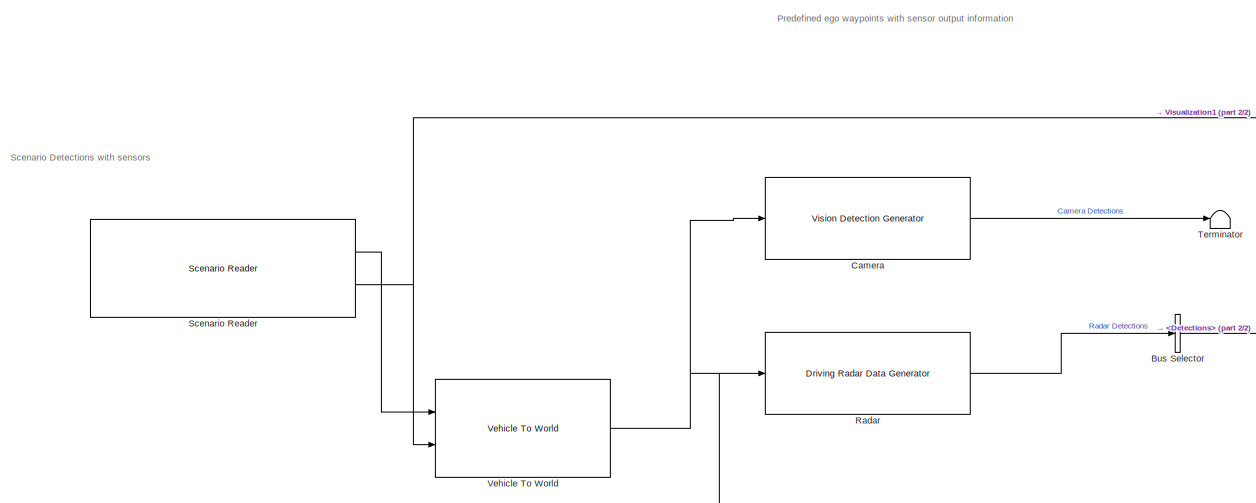
[diagram: root canvas - part 1/2, left side, full height]
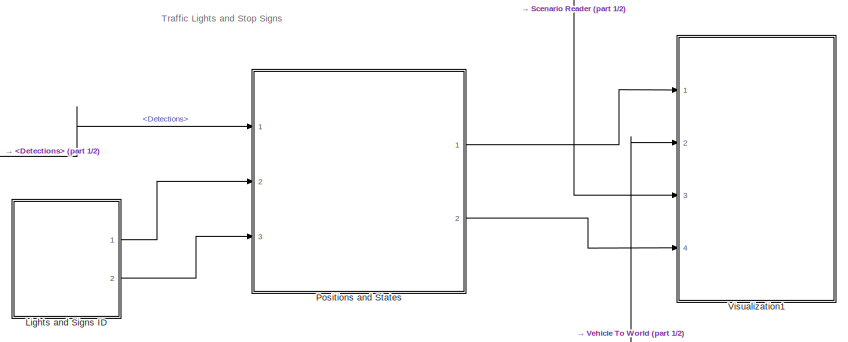
[diagram: root canvas - part 2/2, middle right region]
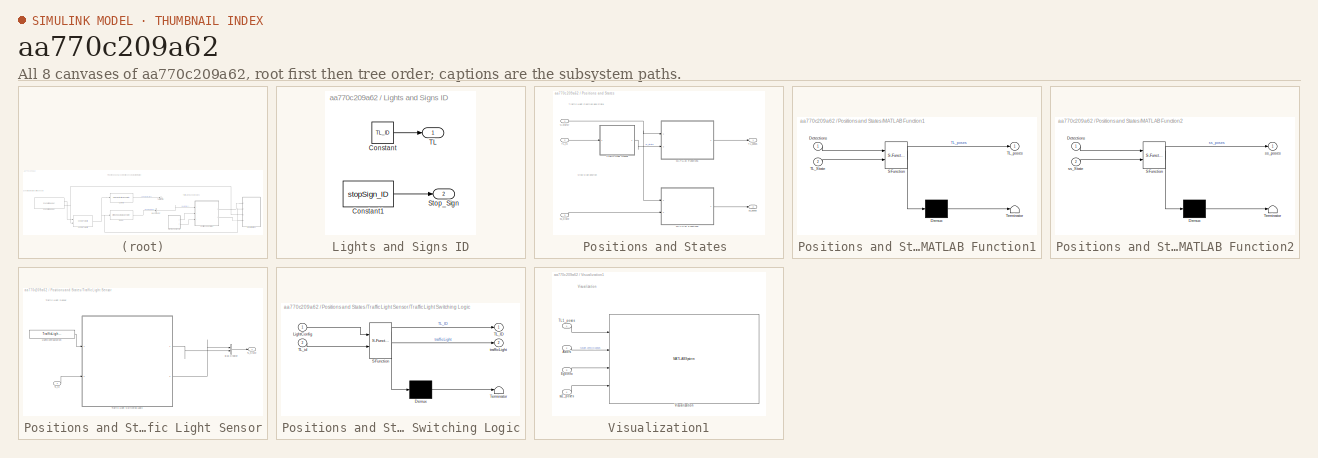
[diagram: thumbnail index - all 8 canvases of the model, root first then tree order]
MODEL slx_aa770c209a62
KIND model
CONFIG AbsTol = auto
CONFIG EnableMultiTasking = off
CONFIG FixedStep = auto
CONFIG MaxStep = auto
CONFIG MinStep = auto
CONFIG RelTol = 1e-3
CONFIG SampleTimeConstraint = Unconstrained
CONFIG SolverName = FixedStepAuto
CONFIG StartTime = 0.0
CONFIG StopTime = stopTime
WORKSPACE source: mxarray member
WORKSPACE firstWarning = 1
WORKSPACE originalScenarioChecksum = '114339432DE22364D47BB28FC96DC10C'
BLOCK [BusSelector] Bus Selector
  OutputSignals = Detections
  Ports = [1, 1]
BLOCK [Reference] Camera  REF=drivingscenarioandsensors/Vision Detection Generator
  Ports = [1, 1]
  SourceBlock = drivingscenarioandsensors/Vision Detection Generator
  SourceProductBaseCode = DR
  SourceType = visionDetectionGenerator
BLOCK [SubSystem] Lights and Signs ID
  Ports = [0, 2]
  RequestExecContextInheritance = off
BLOCK [Constant] Lights and Signs ID/Constant
  Value = TL_ID
BLOCK [Constant] Lights and Signs ID/Constant1
  Value = stopSign_ID
BLOCK [Outport] Lights and Signs ID/Stop_Sign
  Port = 2
BLOCK [Outport] Lights and Signs ID/TL
BLOCK [SubSystem] Positions and States 
  Ports = [3, 2]
  RequestExecContextInheritance = off
BLOCK [Inport] Positions and States /<Actors>
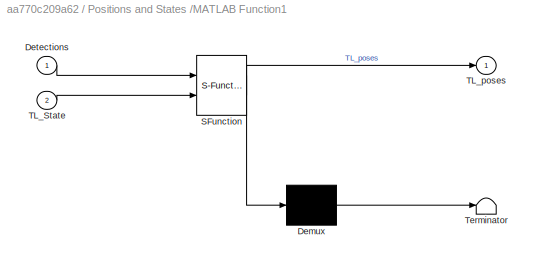
BLOCK [SubSystem] Positions and States /MATLAB Function1
  ErrorFcn = Stateflow.Translate.translate
  PermitHierarchicalResolution = ExplicitOnly
  Ports = [2, 1]
  RequestExecContextInheritance = off
  SFBlockType = MATLAB Function
  TreatAsAtomicUnit = on
BLOCK [Demux] Positions and States /MATLAB Function1/ Demux 
  Outputs = 1
  Ports = [1, 1]
BLOCK [S-Function] Positions and States /MATLAB Function1/ SFunction 
  EnableBusSupport = on
  FunctionName = sf_sfun
  PortCounts = [2 2]
  Ports = [2, 2]
  SFcnIsStateOwnerBlock = off
  SFunctionDeploymentMode = off
  Tag = Stateflow S-Function 1
BLOCK [Terminator] Positions and States /MATLAB Function1/ Terminator 
BLOCK [Inport] Positions and States /MATLAB Function1/Detections
BLOCK [Inport] Positions and States /MATLAB Function1/TL_State
  Port = 2
BLOCK [Outport] Positions and States /MATLAB Function1/TL_poses
BLOCK [SubSystem] Positions and States /MATLAB Function2
  ErrorFcn = Stateflow.Translate.translate
  PermitHierarchicalResolution = ExplicitOnly
  Ports = [2, 1]
  RequestExecContextInheritance = off
  SFBlockType = MATLAB Function
  TreatAsAtomicUnit = on
BLOCK [Demux] Positions and States /MATLAB Function2/ Demux 
  Outputs = 1
  Ports = [1, 1]
BLOCK [S-Function] Positions and States /MATLAB Function2/ SFunction 
  EnableBusSupport = on
  FunctionName = sf_sfun
  PortCounts = [2 2]
  Ports = [2, 2]
  SFcnIsStateOwnerBlock = off
  SFunctionDeploymentMode = off
  Tag = Stateflow S-Function 4
BLOCK [Terminator] Positions and States /MATLAB Function2/ Terminator 
BLOCK [Inport] Positions and States /MATLAB Function2/Detections
BLOCK [Inport] Positions and States /MATLAB Function2/ss_State
  Port = 2
BLOCK [Outport] Positions and States /MATLAB Function2/ss_poses
BLOCK [Inport] Positions and States /TL_id
  Port = 2
BLOCK [Outport] Positions and States /TL_poses
BLOCK [SubSystem] Positions and States /Traffic Light Sensor
  Ports = [1, 1]
  RequestExecContextInheritance = off
BLOCK [BusCreator] Positions and States /Traffic Light Sensor/Bus Creator
  DisplayOption = bar
  InheritFromInputs = on
  Inputs = 2
  Ports = [2, 1]
BLOCK [Constant] Positions and States /Traffic Light Sensor/LightConfiguration
  Value = TrafficLightSensorModeSelection
BLOCK [Outport] Positions and States /Traffic Light Sensor/TL_State
BLOCK [Inport] Positions and States /Traffic Light Sensor/TL_id
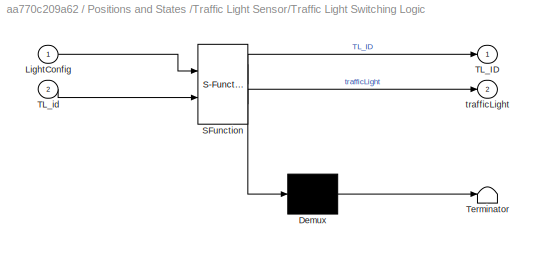
BLOCK [SubSystem] Positions and States /Traffic Light Sensor/Traffic Light Switching Logic
  ErrorFcn = Stateflow.Translate.translate
  PermitHierarchicalResolution = ExplicitOnly
  Ports = [2, 2]
  RequestExecContextInheritance = off
  SFBlockType = Chart
  TreatAsAtomicUnit = on
BLOCK [Demux] Positions and States /Traffic Light Sensor/Traffic Light Switching Logic/ Demux 
  Outputs = 1
  Ports = [1, 1]
BLOCK [S-Function] Positions and States /Traffic Light Sensor/Traffic Light Switching Logic/ SFunction 
  EnableBusSupport = on
  FunctionName = sf_sfun
  PortCounts = [2 3]
  Ports = [2, 3]
  SFcnIsStateOwnerBlock = off
  SFunctionDeploymentMode = off
  Tag = Stateflow S-Function 5
BLOCK [Terminator] Positions and States /Traffic Light Sensor/Traffic Light Switching Logic/ Terminator 
BLOCK [Inport] Positions and States /Traffic Light Sensor/Traffic Light Switching Logic/LightConfig
BLOCK [Outport] Positions and States /Traffic Light Sensor/Traffic Light Switching Logic/TL_ID
BLOCK [Inport] Positions and States /Traffic Light Sensor/Traffic Light Switching Logic/TL_id
  Port = 2
BLOCK [Outport] Positions and States /Traffic Light Sensor/Traffic Light Switching Logic/trafficLight
  Port = 2
BLOCK [Inport] Positions and States /ss_State
  Port = 3
BLOCK [Outport] Positions and States /ss_poses
  Port = 2
BLOCK [Reference] Radar  REF=drivingscenarioandsensors/Driving Radar Data Generator
  Ports = [1, 1]
  SourceBlock = drivingscenarioandsensors/Driving Radar Data Generator
  SourceProductBaseCode = DR
  SourceType = drivingRadarDataGenerator
BLOCK [Reference] Scenario Reader  REF=drivingscenarioandsensors/Scenario Reader
  Ports = [0, 2]
  SourceBlock = drivingscenarioandsensors/Scenario Reader
  SourceProductBaseCode = DR
  SourceType = driving.scenario.internal.ScenarioReader
BLOCK [Terminator] Terminator
BLOCK [Reference] Vehicle To World  REF=drivingscenarioandsensors/Vehicle To World
  Ports = [2, 1]
  SourceBlock = drivingscenarioandsensors/Vehicle To World
  SourceProductBaseCode = DR
  SourceType = driving.scenario.internal.VehicleToWorld
BLOCK [SubSystem] Visualization1
  Ports = [4]
  RequestExecContextInheritance = off
BLOCK [Inport] Visualization1/Actors
  Port = 2
BLOCK [Inport] Visualization1/EgoInfo
  Port = 3
BLOCK [Inport] Visualization1/TL1_poses
BLOCK [MATLABSystem] Visualization1/Visualization
  MaskDisplay = disp('TL_vis');\nport_label('input',1,'TL');\nport_label('input',2,'TargetPoses');\nport_label('input',3,'EgoInfo');\nport_label('input',4,'SS');
  MaskType = TL_vis
  Ports = [4]
  System = TL_vis
BLOCK [Inport] Visualization1/ss1_poses
  Port = 4
ANNOTATION (root): Predefined ego waypoints with sensor output information
ANNOTATION (root): Scenario Detections with sensors
ANNOTATION (root): Traffic Lights and Stop Signs
ANNOTATION Positions and States : Stop Sign positon
ANNOTATION Positions and States : Traffic Light Position and State
ANNOTATION Positions and States /Traffic Light Sensor: Traffic Light Sensor
ANNOTATION Visualization1: Visualization
LINE Bus Selector:1 -> Positions and States :1
LINE Camera:1 -> Terminator:1
LINE Lights and Signs ID/Constant1:1 -> Lights and Signs ID/Stop_Sign:1
LINE Lights and Signs ID/Constant:1 -> Lights and Signs ID/TL:1
LINE Lights and Signs ID:1 -> Positions and States :2
LINE Lights and Signs ID:2 -> Positions and States :3
NET Positions and States /<Actors>:1 -> Positions and States /MATLAB Function1:1, Positions and States /MATLAB Function2:1
LINE Positions and States /MATLAB Function1:1 -> Positions and States /TL_poses:1
LINE Positions and States /MATLAB Function2:1 -> Positions and States /ss_poses:1
LINE Positions and States /TL_id:1 -> Positions and States /Traffic Light Sensor:1
LINE Positions and States /Traffic Light Sensor/Bus Creator:1 -> Positions and States /Traffic Light Sensor/TL_State:1
LINE Positions and States /Traffic Light Sensor/LightConfiguration:1 -> Positions and States /Traffic Light Sensor/Traffic Light Switching Logic:1
LINE Positions and States /Traffic Light Sensor/TL_id:1 -> Positions and States /Traffic Light Sensor/Traffic Light Switching Logic:2
LINE Positions and States /Traffic Light Sensor/Traffic Light Switching Logic:1 -> Positions and States /Traffic Light Sensor/Bus Creator:2
LINE Positions and States /Traffic Light Sensor/Traffic Light Switching Logic:2 -> Positions and States /Traffic Light Sensor/Bus Creator:1
LINE Positions and States /Traffic Light Sensor:1 -> Positions and States /MATLAB Function1:2
LINE Positions and States /ss_State:1 -> Positions and States /MATLAB Function2:2
LINE Positions and States :1 -> Visualization1:1
LINE Positions and States :2 -> Visualization1:4
LINE Radar:1 -> Bus Selector:1
LINE Scenario Reader:1 -> Vehicle To World:1
NET Scenario Reader:2 -> Vehicle To World:2, Visualization1:3
NET Vehicle To World:1 -> Camera:1, Radar:1, Visualization1:2
LINE Visualization1/Actors:1 -> Visualization1/Visualization:2
LINE Visualization1/EgoInfo:1 -> Visualization1/Visualization:3
LINE Visualization1/TL1_poses:1 -> Visualization1/Visualization:1
LINE Visualization1/ss1_poses:1 -> Visualization1/Visualization:4
note: NET lines group one-source signal fan-out (src -> all destinations, sorted); 1:1 wires keep LINE
CHART Positions and States /MATLAB Function1 states=1 transitions=1
  STATE_LABEL 'eML_blk_kernel()'
  STATE_LABEL "SCRIPT:\nfunction TL_poses = findTLposes_detections(Detections, TL_State)\nn=length(TL_State);\nTL_poses=zeros(n/2,5);\nindices=zeros(n/2,1);\nval= zeros(n/2,1);\nID=zeros(length(Detections),1);\n\nfor i=1:length(Detections)\n ID(i)=Detections(i).ObjectAttributes.TargetIndex;\nend\nID=unique(ID,'stable');\nindices=find(ismember(ID,TL_State(n/2+1:end)));\n\nval=ID(indices);\nif (~isempty(indices))\n    for i=1:len...<+163ch>"
CHART Positions and States /MATLAB Function2 states=1 transitions=1
  STATE_LABEL 'eML_blk_kernel()'
  STATE_LABEL "SCRIPT:\nfunction ss_poses  = findSSposes_detections(Detections, ss_State)\nn=length(ss_State);\nss_poses=zeros(n,4);\nindices=zeros(n,1);\nID=zeros(length(Detections),1);\n\n\n\nfor i=1:length(Detections)\n    ID(i)=Detections(i).ObjectAttributes.TargetIndex;\nend\n%ID=unique(ID,'stable');\nindices=find(ismember(unique(ID,'stable'),ss_State));\n\n\nif(~isempty(indices))\n    for i=1:length(indices)\n          ss_p...<+102ch>"
CHART Positions and States /Traffic Light Sensor/Traffic Light Switching Logic states=7 transitions=8
  STATE_LABEL 'STEADYRED\nentry:\ntrafficLight(:)= Red; TL_ID=TL_id;'
  STATE_LABEL 'STEADYGREEN\nentry:\ntrafficLight(:)= Green; TL_ID=TL_id;\n'
  STATE_LABEL 'START\nentry:\ntrafficLight=TL_id;\ntrafficLight(:)= Black;TL_ID=TL_id;'
  STATE_LABEL 'TRAFFICLIGHT_ODDYELLOW_EVENRED\nentry:\ntrafficLight(1:2:end)=Yellow;TL_ID(1:2:end)=TL_id(1:2:end);\ntrafficLight(2:2:end) = Red;TL_ID(2:2:end)=TL_id(2:2:end);'
  STATE_LABEL 'TRAFFICLIGHT_ODDGREEN_EVENRED\nentry:\ntrafficLight(1:2:end)=Green;TL_ID(1:2:end)=TL_id(1:2:end);\ntrafficLight(2:2:end) = Red;TL_ID(2:2:end)=TL_id(2:2:end);\n'
  STATE_LABEL 'TRAFFICLIGHT_ODDRED_EVENYELLOW\nentry:\ntrafficLight(1:2:end)=Red;TL_ID(1:2:end)=TL_id(1:2:end);\ntrafficLight(2:2:end) = Yellow;TL_ID(2:2:end)=TL_id(2:2:end);\n'
  STATE_LABEL 'TRAFFICLIGHT_ODDRED_EVENGREEN\nentry:\ntrafficLight(1:2:end)=Red;TL_ID(1:2:end)=TL_id(1:2:end);\ntrafficLight(2:2:end) = Green;TL_ID(2:2:end)=TL_id(2:2:end);'
CHART  states=0 transitions=0
CHART  states=0 transitions=0
CHART  states=0 transitions=0
